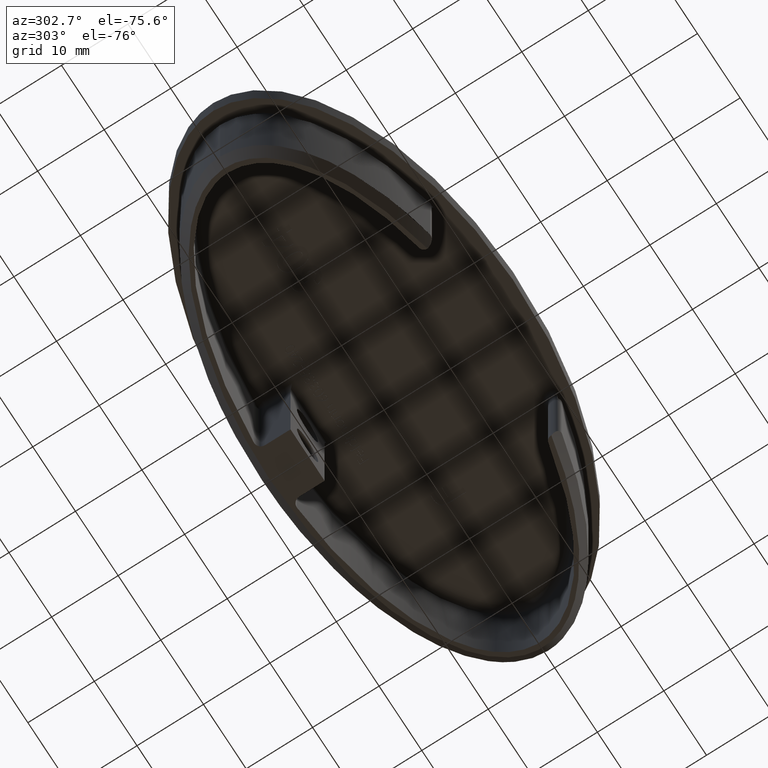
[diagram: clean part render]
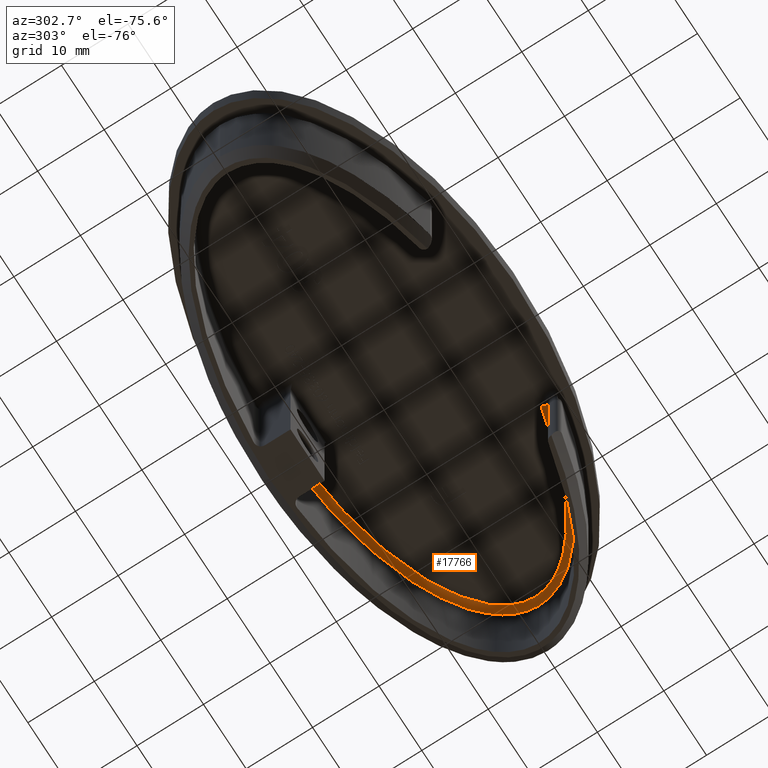
[diagram: same view with one face highlighted and labeled with its STEP entity id]
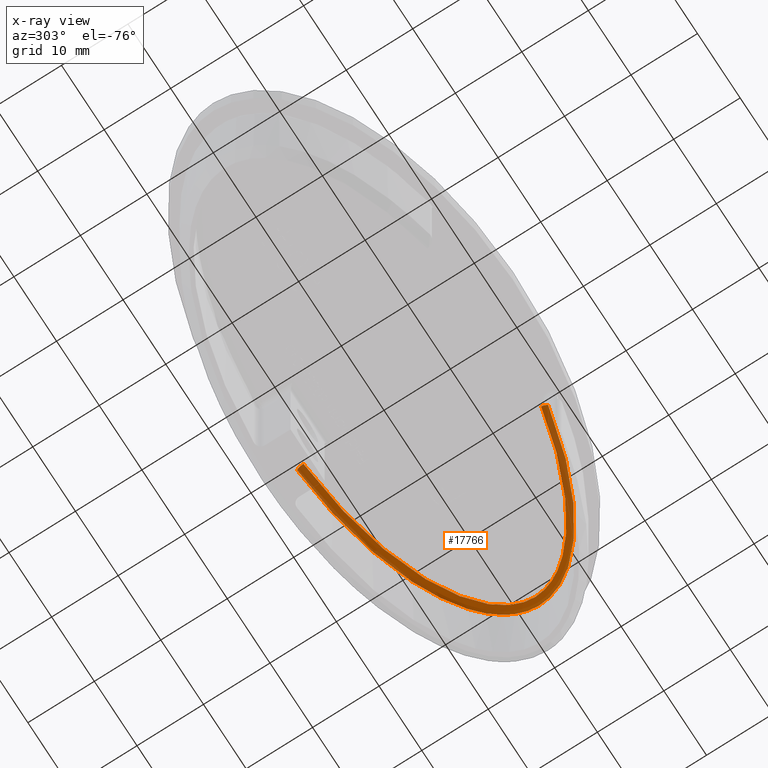
[diagram: x-ray of the same camera — body ghosted, the highlighted face saturated]
A machine part, auxiliary view. The second image highlights one B-rep face of the part: STEP entity #17766.
The next image is the same camera in x-ray: the body ghosted, the highlighted face saturated — about 22% of this face is hidden behind the body in this view.
In plain terms, the highlighted face is a freeform B-spline surface patch.
Its self-contained STEP definition (entity closure, byte-faithful):
#174 = CARTESIAN_POINT ( 'NONE',  ( 21.26345678321402133, -12.37803949894938071, -1.301042606982605321E-15 ) ) ;
#314 = CARTESIAN_POINT ( 'NONE',  ( 35.65981218259821617, -3.536970266699435594, -1.301042606982605124E-15 ) ) ;
#382 = CARTESIAN_POINT ( 'NONE',  ( 30.63025942403847779, -7.753909038157328126, -1.301042606982605321E-15 ) ) ;
#445 = CARTESIAN_POINT ( 'NONE',  ( 35.48936549256551842, -3.869829986172986569, -1.000000000000000888 ) ) ;
#514 = CARTESIAN_POINT ( 'NONE',  ( 36.49350335621724639, 0.4923672548055889053, -1.301042606982605124E-15 ) ) ;
#583 = CARTESIAN_POINT ( 'NONE',  ( 34.75967675400372769, -3.099469151605923845, -1.301042606982605321E-15 ) ) ;
#650 = CARTESIAN_POINT ( 'NONE',  ( 21.98285558272306162, 13.17687429683214972, -1.000000000000000888 ) ) ;
#718 = CARTESIAN_POINT ( 'NONE',  ( 30.51084527226928245, 9.110495190089366702, -1.000000000000000888 ) ) ;
#762 = VERTEX_POINT ( 'NONE', #5364 ) ;
#789 = CARTESIAN_POINT ( 'NONE',  ( 21.34734157472739824, 13.38830686032881445, -1.000000000000000888 ) ) ;
#861 = CARTESIAN_POINT ( 'NONE',  ( 18.15953167746627273, 14.38126225173440709, 2.270783941636172456E-12 ) ) ;
#946 = CARTESIAN_POINT ( 'NONE',  ( 36.48582009450503705, 0.5726934544396672377, -1.000000000000001110 ) ) ;
#1012 = CARTESIAN_POINT ( 'NONE',  ( 27.39790074990626678, -10.90967121701940457, -1.000000000000001110 ) ) ;
#1075 = CARTESIAN_POINT ( 'NONE',  ( 34.13185268707185571, 5.853533565209358969, -1.000000000000001332 ) ) ;
#1140 = CARTESIAN_POINT ( 'NONE',  ( 35.20687651812144736, -4.364188350813879680, -1.000000000000001554 ) ) ;
#1380 = CARTESIAN_POINT ( 'NONE',  ( 10.22533923872077644, 14.84231570294997304, -1.301042606982605321E-15 ) ) ;
#1389 = CARTESIAN_POINT ( 'NONE',  ( 27.61177292880960010, 10.82620345642081539, -1.000000000000001110 ) ) ;
#1437 = CARTESIAN_POINT ( 'NONE',  ( 21.68399147720304398, 12.22216197717541952, -1.301042606982605912E-15 ) ) ;
#1454 = CARTESIAN_POINT ( 'NONE',  ( 26.38295077736240302, 11.42918468486901951, -1.000000000000001332 ) ) ;
#1462 = EDGE_CURVE ( 'NONE', #4835, #762, #16914, .T. ) ;
#1481 = CARTESIAN_POINT ( 'NONE',  ( 6.388284915116066998, 16.25657258451904852, -4.975843535193706102E-12 ) ) ;
#1584 = CARTESIAN_POINT ( 'NONE',  ( 34.68203208628676748, 3.255077491390505173, -1.301042606982605518E-15 ) ) ;
#1601 = CARTESIAN_POINT ( 'NONE',  ( 24.92351165717066053, -10.99257563079131828, -1.301042606982605321E-15 ) ) ;
#1647 = CARTESIAN_POINT ( 'NONE',  ( 21.25949067511998081, -12.37932296166706614, -1.301042606982605518E-15 ) ) ;
#1662 = CARTESIAN_POINT ( 'NONE',  ( 28.96120657976782553, -10.08360900007344796, -1.301042606982605124E-15 ) ) ;
#1732 = CARTESIAN_POINT ( 'NONE',  ( 31.22777016797315852, -8.556492082286091261, -1.000000000000000888 ) ) ;
#1873 = CARTESIAN_POINT ( 'NONE',  ( 36.50201149322371208, -0.07982301956054729808, -1.000000000000000888 ) ) ;
#1918 = CARTESIAN_POINT ( 'NONE',  ( 16.22412580920772029, -13.76920730391419134, -4.718528363748727840E-30 ) ) ;
#1936 = CARTESIAN_POINT ( 'NONE',  ( 33.81579854951861819, -6.234719848615451809, -1.951563910473907981E-15 ) ) ;
#2001 = CARTESIAN_POINT ( 'NONE',  ( 36.45857842177336750, 0.8707688684612469032, -1.301042606982605124E-15 ) ) ;
#2068 = CARTESIAN_POINT ( 'NONE',  ( 34.09231580704933862, -4.249957293760858512, -1.301042606982605321E-15 ) ) ;
#2128 = CARTESIAN_POINT ( 'NONE',  ( 36.10634255804797021, -2.514648161701620310, -1.301042606982605124E-15 ) ) ;
#2192 = CARTESIAN_POINT ( 'NONE',  ( 31.51553632376358749, 7.053874551710665131, -1.301042606982605321E-15 ) ) ;
#2264 = CARTESIAN_POINT ( 'NONE',  ( 34.80406742013403942, 4.980490916081431685, -1.301042606982605124E-15 ) ) ;
#2330 = CARTESIAN_POINT ( 'NONE',  ( 21.98285558277877172, 13.17687429699204493, 3.564975090553881668E-13 ) ) ;
#2402 = CARTESIAN_POINT ( 'NONE',  ( 34.17296033673882505, 4.129270008641589662, -1.301042606982605321E-15 ) ) ;
#2482 = CARTESIAN_POINT ( 'NONE',  ( 33.20771230277453867, 6.870024619271552169, -1.000000000000001332 ) ) ;
#2549 = CARTESIAN_POINT ( 'NONE',  ( 36.46370404180522939, -0.8115805624672641772, -1.000000000000001332 ) ) ;
#2745 = CARTESIAN_POINT ( 'NONE',  ( 36.40222404245460552, 1.254246828357186594, -1.000000000000001110 ) ) ;
#2804 = CARTESIAN_POINT ( 'NONE',  ( 22.56210734373176052, 12.99060195446742050, -1.000000000000001332 ) ) ;
#2805 = CARTESIAN_POINT ( 'NONE',  ( 4.999999999999992895, 15.34247628065456226, -1.000000000000001332 ) ) ;
#2871 = VERTEX_POINT ( 'NONE', #6275 ) ;
#2921 = CARTESIAN_POINT ( 'NONE',  ( 15.38133620756274489, 13.99384702659470037, -1.301042606982605124E-15 ) ) ;
#2982 = CARTESIAN_POINT ( 'NONE',  ( 35.28054480602367704, 1.712554046856639145, -1.301042606982605518E-15 ) ) ;
#3056 = CIRCLE ( 'NONE', #9480, 1.000000000000000222 ) ;
#3099 = CARTESIAN_POINT ( 'NONE',  ( 35.35903922782912900, 1.387567721439747270, -1.301042606982605518E-15 ) ) ;
#3186 = CARTESIAN_POINT ( 'NONE',  ( 30.67194554130117012, -8.955916069884317210, -1.000000000000000888 ) ) ;
#3252 = CARTESIAN_POINT ( 'NONE',  ( 24.08350921651201304, -12.41970347731210111, -1.000000000000000888 ) ) ;
#3316 = CARTESIAN_POINT ( 'NONE',  ( 20.30803585122079369, -13.72708209298127535, -1.134721634496945193E-12 ) ) ;
#3340 = DIRECTION ( 'NONE',  ( -0.2018106209588799160, 0.9794245623161548231, 0.000000000000000000 ) ) ;
#3385 = CARTESIAN_POINT ( 'NONE',  ( 34.27341134742319895, -3.972722937725603476, -1.301042606982605321E-15 ) ) ;
#3449 = CARTESIAN_POINT ( 'NONE',  ( 35.34542790105617627, -1.558713040404205552, -1.301042606982605321E-15 ) ) ;
#3471 = CARTESIAN_POINT ( 'NONE',  ( 14.93674088227401242, -14.03447321771075806, -1.000000000000000000 ) ) ;
#3509 = CARTESIAN_POINT ( 'NONE',  ( 35.56341312309822911, 3.729572152941359242, -1.000000000000000888 ) ) ;
#3572 = CARTESIAN_POINT ( 'NONE',  ( 32.14423837253605143, -6.502482204379113284, -1.301042606982605321E-15 ) ) ;
#3647 = CARTESIAN_POINT ( 'NONE',  ( 35.01017297614893664, 4.677211483779848855, -1.000000000000000888 ) ) ;
#3716 = CARTESIAN_POINT ( 'NONE',  ( 23.24944064167065960, 12.72487679989903064, -1.000000000000000888 ) ) ;
#3783 = CARTESIAN_POINT ( 'NONE',  ( 26.53774569154395380, 10.24697701311105469, -1.301042606982605321E-15 ) ) ;
#3854 = CARTESIAN_POINT ( 'NONE',  ( 7.618420921276204183, 15.14343929999975913, -1.301042606982605321E-15 ) ) ;
#3921 = CARTESIAN_POINT ( 'NONE',  ( 34.15608176740394697, 5.849548827326583655, -1.301042606982605124E-15 ) ) ;
#3993 = CARTESIAN_POINT ( 'NONE',  ( 32.52449512010636568, -7.504760917822943078, -1.000000000000001110 ) ) ;
#4123 = CARTESIAN_POINT ( 'NONE',  ( 21.73751689087374928, -13.27563920825335053, -1.000000000000001332 ) ) ;
#4182 = CARTESIAN_POINT ( 'NONE',  ( 33.74624141004759537, -6.293203593818191166, -1.000000000000001332 ) ) ;
#4238 = CARTESIAN_POINT ( 'NONE',  ( 5.000000000000000000, 15.34247628065456226, 0.000000000000000000 ) ) ;
#4298 = CARTESIAN_POINT ( 'NONE',  ( 5.063193593044852392, 16.34047756812772079, -1.000000000000001332 ) ) ;
#4468 = CARTESIAN_POINT ( 'NONE',  ( 34.95881946401048168, 2.656363002672902152, -1.301042606982605124E-15 ) ) ;
#4479 = CARTESIAN_POINT ( 'NONE',  ( 15.94675819806633577, 14.85770620499337547, -1.000000000000001110 ) ) ;
#4549 = CARTESIAN_POINT ( 'NONE',  ( 10.55131555202487448, 15.84984284271810928, -1.000000000000001554 ) ) ;
#4689 = CARTESIAN_POINT ( 'NONE',  ( 15.13855150323289323, -15.01389778002691244, -1.000000000000000888 ) ) ;
#4712 = DIRECTION ( 'NONE',  ( 0.9794245623161549341, 0.2018106209588799715, -0.000000000000000000 ) ) ;
#4736 = CARTESIAN_POINT ( 'NONE',  ( 14.93674088227401242, -14.03447321771075806, 0.000000000000000000 ) ) ;
#4760 = CARTESIAN_POINT ( 'NONE',  ( 16.44696568053878494, -14.74429878511394776, -1.000000000000000888 ) ) ;
#4823 = CARTESIAN_POINT ( 'NONE',  ( 34.28892556830538041, -5.689073677446335964, -1.301042606982605124E-15 ) ) ;
#4835 = VERTEX_POINT ( 'NONE', #13065 ) ;
#4891 = CARTESIAN_POINT ( 'NONE',  ( 36.49754000459249426, -0.2713099805717995583, -1.000000000000000888 ) ) ;
#4953 = CARTESIAN_POINT ( 'NONE',  ( 36.24234380327397531, 1.990750464926849039, -1.301042606982605124E-15 ) ) ;
#5023 = CARTESIAN_POINT ( 'NONE',  ( 36.45857842228580381, 0.8707688685470439394, -1.000000000000000888 ) ) ;
#5082 = CARTESIAN_POINT ( 'NONE',  ( 35.49437413273113862, 0.4263713847623804010, -1.301042606982605321E-15 ) ) ;
#5156 = CARTESIAN_POINT ( 'NONE',  ( 25.75717038492712163, 11.71567007437397478, -1.000000000000000888 ) ) ;
#5219 = CARTESIAN_POINT ( 'NONE',  ( 21.34734157469030080, 13.38830686020971150, -5.693222886677754097E-13 ) ) ;
#5285 = CARTESIAN_POINT ( 'NONE',  ( 22.89978701469024358, 11.78788728370534677, -1.301042606982605321E-15 ) ) ;
#5353 = CARTESIAN_POINT ( 'NONE',  ( 33.68444688847695545, 6.377751608718475573, 2.127722496375495368E-13 ) ) ;
#5364 = CARTESIAN_POINT ( 'NONE',  ( 5.063193593044852392, 16.34047756812772079, -1.000000000000001332 ) ) ;
#5419 = CARTESIAN_POINT ( 'NONE',  ( 17.91137160567403797, 13.41117177278233008, -1.301042606982605321E-15 ) ) ;
#5558 = CARTESIAN_POINT ( 'NONE',  ( 29.78902681713085343, -9.545779801959744404, -1.000000000000001332 ) ) ;
#5746 = CARTESIAN_POINT ( 'NONE',  ( 14.93674088227401064, -14.03447321771075806, -1.301042606982605321E-15 ) ) ;
#5874 = CARTESIAN_POINT ( 'NONE',  ( 29.94939340892505086, 8.239588489241539193, -1.301042606982605518E-15 ) ) ;
#5935 = CARTESIAN_POINT ( 'NONE',  ( 7.622618855988552156, 15.14304571387305742, -1.301042606982605518E-15 ) ) ;
#6001 = CARTESIAN_POINT ( 'NONE',  ( 35.15232466707980308, -2.203565091193417036, -1.301042606982605321E-15 ) ) ;
#6035 = ORIENTED_EDGE ( 'NONE', *, *, #14742, .F. ) ;
#6121 = CARTESIAN_POINT ( 'NONE',  ( 17.92688847584695822, 13.40751963045385153, -1.301042606982605321E-15 ) ) ;
#6137 = CARTESIAN_POINT ( 'NONE',  ( 27.75676179364277374, -10.74482727317073305, -9.957190647320763890E-13 ) ) ;
#6275 = CARTESIAN_POINT ( 'NONE',  ( 14.93674088227401242, -14.03447321771075806, 0.000000000000000000 ) ) ;
#6336 = CARTESIAN_POINT ( 'NONE',  ( 36.45414414809246750, -0.8483598868671311521, -1.301042606982605124E-15 ) ) ;
#6407 = CARTESIAN_POINT ( 'NONE',  ( 36.24234380492978147, 1.990750465454291351, -1.000000000000000888 ) ) ;
#6466 = ORIENTED_EDGE ( 'NONE', *, *, #1462, .F. ) ;
#6471 = CARTESIAN_POINT ( 'NONE',  ( 35.46026168835792447, -0.7351055012475576911, -1.301042606982605321E-15 ) ) ;
#6532 = CARTESIAN_POINT ( 'NONE',  ( 36.32199508734758098, -1.796155507937118312, -1.000000000000000888 ) ) ;
#6543 = FACE_OUTER_BOUND ( 'NONE', #18459, .T. ) ;
#6593 = CARTESIAN_POINT ( 'NONE',  ( 36.33339663688445853, 1.618750979214554686, -1.000000000000000888 ) ) ;
#6663 = CARTESIAN_POINT ( 'NONE',  ( 25.75717038479421817, 11.71567007405621474, 8.563362085233749455E-13 ) ) ;
#6732 = CARTESIAN_POINT ( 'NONE',  ( 15.57705991268568724, 14.97521234356037745, -1.000000000000000888 ) ) ;
#6798 = CARTESIAN_POINT ( 'NONE',  ( 34.80406742104884898, 4.980490916763531395, -1.000000000000000888 ) ) ;
#6850 = CIRCLE ( 'NONE', #15902, 1.000000000000000222 ) ;
#6859 = CARTESIAN_POINT ( 'NONE',  ( 11.66312661596286304, 15.64768887152057708, -2.405766284831314642E-12 ) ) ;
#6919 = CARTESIAN_POINT ( 'NONE',  ( 34.51667047969942104, 3.562837921786682571, -1.301042606982605321E-15 ) ) ;
#6999 = CARTESIAN_POINT ( 'NONE',  ( 36.10883213206641074, -2.494373021585447603, -1.000000000000001110 ) ) ;
#7059 = CARTESIAN_POINT ( 'NONE',  ( 34.76718474666605374, 5.032627065776225095, -1.000000000000001332 ) ) ;
#7122 = CARTESIAN_POINT ( 'NONE',  ( 36.30469027430676476, -1.837308386220061207, -1.000000000000001554 ) ) ;
#7249 = CARTESIAN_POINT ( 'NONE',  ( 24.29259508245304389, -12.33727958221693477, -1.000000000000001332 ) ) ;
#7354 = CARTESIAN_POINT ( 'NONE',  ( 35.07974928223651290, 2.348458941681684120, -1.301042606982605321E-15 ) ) ;
#7417 = CARTESIAN_POINT ( 'NONE',  ( 28.28303989761142745, 9.288931394227894600, -1.301042606982605321E-15 ) ) ;
#7475 = CARTESIAN_POINT ( 'NONE',  ( 33.40274836724248786, 5.188925909317213758, -1.301042606982605715E-15 ) ) ;
#7551 = CARTESIAN_POINT ( 'NONE',  ( 7.811747577358897132, 16.16643871254032661, -1.000000000000001998 ) ) ;
#7727 = CARTESIAN_POINT ( 'NONE',  ( 32.13527644082677881, -6.510730332315223023, -1.301042606982604926E-15 ) ) ;
#7746 = CARTESIAN_POINT ( 'NONE',  ( 17.74303177656778274, -14.43530123388950415, 1.132119549282976146E-12 ) ) ;
#7794 = CARTESIAN_POINT ( 'NONE',  ( 24.91736434352034024, -10.99520072898910961, -1.301042606982605124E-15 ) ) ;
#7818 = CARTESIAN_POINT ( 'NONE',  ( 35.46417545490827905, 0.7542238789466434445, -1.301042606982605321E-15 ) ) ;
#7877 = CARTESIAN_POINT ( 'NONE',  ( 36.01238833916037407, 2.712655008387785838, -1.301042606982605124E-15 ) ) ;
#7943 = CARTESIAN_POINT ( 'NONE',  ( 34.60681774724604054, -3.398291372714228764, -1.301042606982605321E-15 ) ) ;
#8021 = CARTESIAN_POINT ( 'NONE',  ( 34.28892556674760783, -5.689073676325721252, -1.000000000000000888 ) ) ;
#8092 = CARTESIAN_POINT ( 'NONE',  ( 36.33339663739689485, 1.618750979300351167, -1.301042606982605124E-15 ) ) ;
#8154 = CARTESIAN_POINT ( 'NONE',  ( 23.24944064161493884, 12.72487679973913544, -3.569311899243772189E-13 ) ) ;
#8216 = CARTESIAN_POINT ( 'NONE',  ( 15.57705991265550338, 14.97521234339787277, 4.807629441841714587E-12 ) ) ;
#8284 = CARTESIAN_POINT ( 'NONE',  ( 11.66312661594777111, 15.64768887143932652, -1.000000000000000888 ) ) ;
#8357 = CARTESIAN_POINT ( 'NONE',  ( 26.98014997573422846, 11.14486977138079382, -1.301042606982605124E-15 ) ) ;
#8424 = CARTESIAN_POINT ( 'NONE',  ( 28.83626710121268388, 8.986094359955204780, -1.301042606982605321E-15 ) ) ;
#8496 = CARTESIAN_POINT ( 'NONE',  ( 28.00900768450572542, -10.58883062747300130, -1.000000000000001332 ) ) ;
#8629 = CARTESIAN_POINT ( 'NONE',  ( 33.03027102472690757, -7.042486414281206919, -1.000000000000001110 ) ) ;
#8698 = CARTESIAN_POINT ( 'NONE',  ( 34.41940713242369299, -5.498601881428127669, -1.000000000000001332 ) ) ;
#8754 = CARTESIAN_POINT ( 'NONE',  ( 21.57701336690316651, -13.32804823606663369, -1.301042606982605124E-15 ) ) ;
#8798 = CARTESIAN_POINT ( 'NONE',  ( 21.05989548793523625, 12.43015192604734587, -1.301042606982605321E-15 ) ) ;
#8807 = CARTESIAN_POINT ( 'NONE',  ( 29.38687936850611493, 9.796022883596865682, -1.000000000000001332 ) ) ;
#8808 = DIRECTION ( 'NONE',  ( 0.06319359304485931694, 0.9980012874731579720, -1.734723475976806700E-15 ) ) ;
#8917 = CARTESIAN_POINT ( 'NONE',  ( 35.50355312941728414, -0.2512728194424050376, -1.301042606982605321E-15 ) ) ;
#8951 = CARTESIAN_POINT ( 'NONE',  ( 5.063193593044852392, 16.34047756812772079, -1.301042606982605124E-15 ) ) ;
#8980 = CARTESIAN_POINT ( 'NONE',  ( 34.26573175431854423, -3.984906463575478952, -1.301042606982604926E-15 ) ) ;
#9049 = CARTESIAN_POINT ( 'NONE',  ( 23.54431420789328300, 11.54184402439089574, -1.301042606982605321E-15 ) ) ;
#9065 = CARTESIAN_POINT ( 'NONE',  ( 23.71563954144319197, -11.48937760189580359, -1.301042606982605321E-15 ) ) ;
#9195 = CARTESIAN_POINT ( 'NONE',  ( 30.67194554102453452, -8.955916069464651130, -1.301042606982605124E-15 ) ) ;
#9265 = CARTESIAN_POINT ( 'NONE',  ( 20.01899711677316063, -12.76947023965609596, -1.301042606982605321E-15 ) ) ;
#9329 = CARTESIAN_POINT ( 'NONE',  ( 33.81579855058418360, -6.234719849669323466, -1.000000000000000888 ) ) ;
#9394 = CARTESIAN_POINT ( 'NONE',  ( 35.15741556496025311, -2.188854330921533364, -1.301042606982605321E-15 ) ) ;
#9457 = CARTESIAN_POINT ( 'NONE',  ( 35.87494735105045152, 3.059692700991359260, -1.000000000000000888 ) ) ;
#9480 = AXIS2_PLACEMENT_3D ( 'NONE', #2805, #19366, #8808 ) ;
#9529 = CARTESIAN_POINT ( 'NONE',  ( 35.12061735150709296, -4.505152437200748317, 3.470407951361302610E-14 ) ) ;
#9599 = CARTESIAN_POINT ( 'NONE',  ( 36.47366950340741454, -0.6554114895734104440, -1.301042606982605124E-15 ) ) ;
#9662 = CARTESIAN_POINT ( 'NONE',  ( 35.38929400905234246, 4.052422481084197337, -1.301042606982605124E-15 ) ) ;
#9733 = CARTESIAN_POINT ( 'NONE',  ( 21.03764144066156661, 12.43738519578182533, -1.301042606982605321E-15 ) ) ;
#9804 = CARTESIAN_POINT ( 'NONE',  ( 7.715538138078124497, 16.13886983581115331, -1.000000000000000888 ) ) ;
#9864 = CARTESIAN_POINT ( 'NONE',  ( 23.88191482871775051, 12.48371732782683630, -1.000000000000000888 ) ) ;
#9934 = CARTESIAN_POINT ( 'NONE',  ( 30.51084527309265226, 9.110495191148057614, 1.438115213001867399E-12 ) ) ;
#9957 = CARTESIAN_POINT ( 'NONE',  ( 15.13855150323289323, -15.01389778002691244, -1.000000000000000888 ) ) ;
#10080 = CARTESIAN_POINT ( 'NONE',  ( 33.97843164088143197, -6.033099299433943408, -1.000000000000001332 ) ) ;
#10203 = CARTESIAN_POINT ( 'NONE',  ( 36.50446101324172332, 0.2296554964135146815, -1.000000000000001332 ) ) ;
#10321 = CARTESIAN_POINT ( 'NONE',  ( 31.65387893757583981, 8.230978165580326689, -1.000000000000001554 ) ) ;
#10367 = CARTESIAN_POINT ( 'NONE',  ( 32.96538613496898051, 5.681083614395413761, -1.301042606982605715E-15 ) ) ;
#10438 = CARTESIAN_POINT ( 'NONE',  ( 34.75304895790321780, -3.113062336260697727, -1.301042606982605124E-15 ) ) ;
#10504 = CARTESIAN_POINT ( 'NONE',  ( 28.84682194448313197, 8.954544760494528077, -1.301042606982605321E-15 ) ) ;
#10519 = CARTESIAN_POINT ( 'NONE',  ( 16.44696568056802732, -14.74429878529736548, -8.564773348546408375E-13 ) ) ;
#10570 = CARTESIAN_POINT ( 'NONE',  ( 22.92652740202607475, 11.77792587111403577, -1.301042606982604926E-15 ) ) ;
#10588 = CARTESIAN_POINT ( 'NONE',  ( 25.32113168359854427, -11.91090900637284200, 9.961527456010707928E-13 ) ) ;
#10631 = CARTESIAN_POINT ( 'NONE',  ( 23.71020068063047859, -11.49150187558048053, -1.301042606982605518E-15 ) ) ;
#10651 = CARTESIAN_POINT ( 'NONE',  ( 27.29073844258751080, -9.859242658230101597, -1.301042606982605321E-15 ) ) ;
#10729 = CARTESIAN_POINT ( 'NONE',  ( 30.09885528691413725, -8.135972040794523963, -1.301042606982605321E-15 ) ) ;
#10769 = CARTESIAN_POINT ( 'NONE',  ( 28.44824992330138969, -9.223368201835501878, -1.301042606982605321E-15 ) ) ;
#10789 = CARTESIAN_POINT ( 'NONE',  ( 16.22493679868706096, -13.76904019955213343, -1.301042606982605321E-15 ) ) ;
#10850 = CARTESIAN_POINT ( 'NONE',  ( 36.10634255976907525, -2.514648162453223534, -1.000000000000000888 ) ) ;
#10901 = CARTESIAN_POINT ( 'NONE',  ( 17.49814135742676768, -13.46543791400717538, -1.301042606982605321E-15 ) ) ;
#10924 = CARTESIAN_POINT ( 'NONE',  ( 32.82373229518012892, -7.237521230313464393, -1.951563910473907981E-15 ) ) ;
#10989 = CARTESIAN_POINT ( 'NONE',  ( 35.87494734985515521, 3.059692700435333812, 3.426019660251567099E-14 ) ) ;
#11051 = CARTESIAN_POINT ( 'NONE',  ( 32.82373229411456350, -7.237521229259593625, -1.000000000000000888 ) ) ;
#11117 = CARTESIAN_POINT ( 'NONE',  ( 33.07348908870566362, -5.563176086801372655, -1.301042606982605321E-15 ) ) ;
#11192 = CARTESIAN_POINT ( 'NONE',  ( 32.95109192770325990, 5.696522838348265338, -1.301042606982605321E-15 ) ) ;
#11262 = CARTESIAN_POINT ( 'NONE',  ( 32.15855788575473895, 7.820465153631245059, -1.000000000000000888 ) ) ;
#11329 = CARTESIAN_POINT ( 'NONE',  ( 10.35167252607744537, 15.83446405791861089, -1.000000000000000888 ) ) ;
#11411 = CARTESIAN_POINT ( 'NONE',  ( 6.388284915112206974, 16.25657258443174413, -1.000000000000000888 ) ) ;
#11439 = EDGE_CURVE ( 'NONE', #14960, #2871, #14224, .T. ) ;
#11497 = CARTESIAN_POINT ( 'NONE',  ( 35.34312631065629517, 4.165218799929891524, -1.000000000000001332 ) ) ;
#11555 = CARTESIAN_POINT ( 'NONE',  ( 31.47007461483784141, -8.373209551281881602, -1.000000000000001332 ) ) ;
#11737 = CARTESIAN_POINT ( 'NONE',  ( 34.62881371863232971, -5.223680620168257072, -1.000000000000001110 ) ) ;
#11832 = CARTESIAN_POINT ( 'NONE',  ( 26.56104015844696775, 10.23544758496507079, -1.301042606982605518E-15 ) ) ;
#11844 = CARTESIAN_POINT ( 'NONE',  ( 19.93935196102569662, 13.83962493073069133, -1.000000000000001332 ) ) ;
#11955 = CARTESIAN_POINT ( 'NONE',  ( 30.48910549716958229, 7.858454757231509547, -1.301042606982605518E-15 ) ) ;
#12014 = CARTESIAN_POINT ( 'NONE',  ( 33.99645763040165036, 4.389658518661335940, -1.301042606982605124E-15 ) ) ;
#12085 = CARTESIAN_POINT ( 'NONE',  ( 32.03048634021340746, 6.606481812304480172, -1.301042606982605518E-15 ) ) ;
#12100 = CARTESIAN_POINT ( 'NONE',  ( 27.75676179390003284, -10.74482727371397850, -1.000000000000000888 ) ) ;
#12144 = CARTESIAN_POINT ( 'NONE',  ( 33.06462473797139268, -5.572931723676476601, -1.301042606982605124E-15 ) ) ;
#12160 = CARTESIAN_POINT ( 'NONE',  ( 28.45628324695599787, -9.218730380430129046, -1.301042606982605321E-15 ) ) ;
#12218 = CARTESIAN_POINT ( 'NONE',  ( 31.22777016849376963, -8.556492082937863231, -4.979552035236093589E-13 ) ) ;
#12272 = CARTESIAN_POINT ( 'NONE',  ( 31.64396148262366992, -6.944686350085152782, -1.301042606982605124E-15 ) ) ;
#12357 = CARTESIAN_POINT ( 'NONE',  ( 35.35523377079213247, 1.405168671204740205, -1.301042606982605321E-15 ) ) ;
#12417 = CARTESIAN_POINT ( 'NONE',  ( 35.48936549140591978, -3.869829985499940950, -3.730616472757874792E-14 ) ) ;
#12480 = CARTESIAN_POINT ( 'NONE',  ( 34.95159469086656401, 2.673724092150629339, -1.301042606982605321E-15 ) ) ;
#12552 = CARTESIAN_POINT ( 'NONE',  ( 36.32199509005018712, -1.796155508313936444, -1.301042606982605124E-15 ) ) ;
#12617 = CARTESIAN_POINT ( 'NONE',  ( 36.49350335575667970, 0.4923672547987383852, -1.000000000000000888 ) ) ;
#12684 = CARTESIAN_POINT ( 'NONE',  ( 21.66030375494722193, 12.23021314833348328, -1.301042606982605321E-15 ) ) ;
#12754 = CARTESIAN_POINT ( 'NONE',  ( 33.68444688931395348, 6.377751609566750801, -1.000000000000000888 ) ) ;
#12825 = CARTESIAN_POINT ( 'NONE',  ( 7.715538138082726149, 16.13886983584874102, 9.922400189991231640E-13 ) ) ;
#12889 = CARTESIAN_POINT ( 'NONE',  ( 34.15608176557432074, 5.849548825962385123, -1.000000000000000888 ) ) ;
#12976 = CARTESIAN_POINT ( 'NONE',  ( 30.92129779895572028, -8.779210656947789460, -1.000000000000000888 ) ) ;
#13042 = CARTESIAN_POINT ( 'NONE',  ( 36.05221524359702556, 2.597136473240593713, -1.000000000000001110 ) ) ;
#13065 = CARTESIAN_POINT ( 'NONE',  ( 15.13855150323289323, -15.01389778002691244, -1.000000000000000888 ) ) ;
#13119 =( BOUNDED_SURFACE ( )  B_SPLINE_SURFACE ( 3, 2, ( 
 ( #4689, #16681, #5746 ),
 ( #4760, #10519, #10789 ),
 ( #17750, #7746, #16555 ),
 ( #15190, #3316, #9265 ),
 ( #16232, #8754, #174 ),
 ( #3252, #19479, #9065 ),
 ( #15120, #10588, #1601 ),
 ( #12100, #6137, #10651 ),
 ( #18195, #1662, #12160 ),
 ( #3186, #9195, #10729 ),
 ( #1732, #12218, #382 ),
 ( #16944, #18328, #17097 ),
 ( #11051, #10924, #3572 ),
 ( #9329, #1936, #11117 ),
 ( #8021, #4823, #17019 ),
 ( #13868, #18519, #2068 ),
 ( #13804, #9529, #3385 ),
 ( #445, #12417, #7943 ),
 ( #14072, #314, #583 ),
 ( #10850, #2128, #9394 ),
 ( #6532, #12552, #3449 ),
 ( #15453, #6336, #6471 ),
 ( #13935, #9599, #18586 ),
 ( #4891, #15322, #15390 ),
 ( #1873, #16819, #15583 ),
 ( #12617, #514, #5082 ),
 ( #5023, #2001, #7818 ),
 ( #6593, #8092, #12357 ),
 ( #6407, #4953, #16878 ),
 ( #18460, #7877, #18396 ),
 ( #9457, #10989, #12480 ),
 ( #3509, #14008, #15514 ),
 ( #17366, #9662, #6919 ),
 ( #3647, #17430, #2402 ),
 ( #6798, #2264, #14344 ),
 ( #12889, #3921, #14137 ),
 ( #12754, #5353, #11192 ),
 ( #18652, #15925, #14207 ),
 ( #11262, #14412, #2192 ),
 ( #718, #9934, #18865 ),
 ( #15646, #15856, #8424 ),
 ( #14279, #8357, #3783 ),
 ( #5156, #6663, #15714 ),
 ( #9864, #17165, #17232 ),
 ( #3716, #8154, #5285 ),
 ( #650, #2330, #12684 ),
 ( #789, #5219, #9733 ),
 ( #18728, #861, #5419 ),
 ( #6732, #8216, #15785 ),
 ( #8284, #6859, #17303 ),
 ( #11329, #18794, #18927 ),
 ( #9804, #12825, #3854 ),
 ( #11411, #1481, #14764 ),
 ( #16260, #8951, #17719 ) ),
 .UNSPECIFIED., .F., .F., .F. ) 
 B_SPLINE_SURFACE_WITH_KNOTS ( ( 4, 2, 2, 2, 2, 2, 2, 2, 2, 2, 2, 2, 2, 2, 2, 2, 2, 2, 2, 2, 2, 2, 2, 2, 2, 2, 4 ),
 ( 3, 3 ),
 ( 0.1024749600732555305, 0.1063504850441077954, 0.1102260100149600741, 0.1141015349858123529, 0.1179770599566646316, 0.1199148224420907710, 0.1218525849275169104, 0.1237903474129430498, 0.1247592286556561125, 0.1257281098983691892, 0.1276658723837953147, 0.1281503130051518391, 0.1286347536265083913, 0.1296036348692214402, 0.1305725161119345168, 0.1315413973546475934, 0.1325102785973606423, 0.1334791598400737189, 0.1354169223254998444, 0.1373546848109259977, 0.1412302097817782487, 0.1451057347526305275, 0.1470434972380566530, 0.1489812597234828062, 0.1567323096651873637, 0.1606078346360396147, 0.1644833596068918935 ),
 ( 0.000000000000000000, 1.000000000000000000 ),
 .UNSPECIFIED. ) 
 GEOMETRIC_REPRESENTATION_ITEM ( )  RATIONAL_B_SPLINE_SURFACE ( (
 ( 1.000000000000000000, 0.7071067811865475727, 1.000000000000000000),
 ( 1.000000000000000000, 0.7071067811865475727, 1.000000000000000000),
 ( 1.000000000000000000, 0.7071067811865476838, 1.000000000000000000),
 ( 1.000000000000000000, 0.7071067811865476838, 1.000000000000000000),
 ( 1.000000000000000000, 0.7071067811865476838, 1.000000000000000000),
 ( 1.000000000000000000, 0.7071067811865476838, 1.000000000000000000),
 ( 1.000000000000000000, 0.7071067811865471286, 1.000000000000000000),
 ( 1.000000000000000000, 0.7071067811865471286, 1.000000000000000000),
 ( 1.000000000000000000, 0.7071067811865476838, 1.000000000000000000),
 ( 1.000000000000000000, 0.7071067811865476838, 1.000000000000000000),
 ( 1.000000000000000000, 0.7071067811865476838, 1.000000000000000000),
 ( 1.000000000000000000, 0.7071067811865476838, 1.000000000000000000),
 ( 1.000000000000000000, 0.7071067811865477948, 1.000000000000000000),
 ( 1.000000000000000000, 0.7071067811865477948, 1.000000000000000000),
 ( 1.000000000000000000, 0.7071067811865476838, 1.000000000000000000),
 ( 1.000000000000000000, 0.7071067811865476838, 1.000000000000000000),
 ( 1.000000000000000000, 0.7071067811865476838, 1.000000000000000000),
 ( 1.000000000000000000, 0.7071067811865476838, 1.000000000000000000),
 ( 1.000000000000000000, 0.7071067811865476838, 1.000000000000000000),
 ( 1.000000000000000000, 0.7071067811865476838, 1.000000000000000000),
 ( 1.000000000000000000, 0.7071067811865476838, 1.000000000000000000),
 ( 1.000000000000000000, 0.7071067811865476838, 1.000000000000000000),
 ( 1.000000000000000000, 0.7071067811865476838, 1.000000000000000000),
 ( 1.000000000000000000, 0.7071067811865476838, 1.000000000000000000),
 ( 1.000000000000000000, 0.7071067811865476838, 1.000000000000000000),
 ( 1.000000000000000000, 0.7071067811865476838, 1.000000000000000000),
 ( 1.000000000000000000, 0.7071067811865476838, 1.000000000000000000),
 ( 1.000000000000000000, 0.7071067811865476838, 1.000000000000000000),
 ( 1.000000000000000000, 0.7071067811865476838, 1.000000000000000000),
 ( 1.000000000000000000, 0.7071067811865476838, 1.000000000000000000),
 ( 1.000000000000000000, 0.7071067811865477948, 1.000000000000000000),
 ( 1.000000000000000000, 0.7071067811865477948, 1.000000000000000000),
 ( 1.000000000000000000, 0.7071067811865476838, 1.000000000000000000),
 ( 1.000000000000000000, 0.7071067811865476838, 1.000000000000000000),
 ( 1.000000000000000000, 0.7071067811865476838, 1.000000000000000000),
 ( 1.000000000000000000, 0.7071067811865476838, 1.000000000000000000),
 ( 1.000000000000000000, 0.7071067811865476838, 1.000000000000000000),
 ( 1.000000000000000000, 0.7071067811865476838, 1.000000000000000000),
 ( 1.000000000000000000, 0.7071067811865476838, 1.000000000000000000),
 ( 1.000000000000000000, 0.7071067811865476838, 1.000000000000000000),
 ( 1.000000000000000000, 0.7071067811865476838, 1.000000000000000000),
 ( 1.000000000000000000, 0.7071067811865476838, 1.000000000000000000),
 ( 1.000000000000000000, 0.7071067811865476838, 1.000000000000000000),
 ( 1.000000000000000000, 0.7071067811865476838, 1.000000000000000000),
 ( 1.000000000000000000, 0.7071067811865472397, 1.000000000000000000),
 ( 1.000000000000000000, 0.7071067811865472397, 1.000000000000000000),
 ( 1.000000000000000000, 0.7071067811865476838, 1.000000000000000000),
 ( 1.000000000000000000, 0.7071067811865476838, 1.000000000000000000),
 ( 1.000000000000000000, 0.7071067811865476838, 1.000000000000000000),
 ( 1.000000000000000000, 0.7071067811865476838, 1.000000000000000000),
 ( 1.000000000000000000, 0.7071067811865476838, 1.000000000000000000),
 ( 1.000000000000000000, 0.7071067811865476838, 1.000000000000000000),
 ( 1.000000000000000000, 0.7071067811865476838, 1.000000000000000000),
 ( 1.000000000000000000, 0.7071067811865476838, 1.000000000000000000) ) ) 
 REPRESENTATION_ITEM ( '' )  SURFACE ( )  );
#13157 = CARTESIAN_POINT ( 'NONE',  ( 29.20547571465771952, -9.906273330977322544, -1.000000000000001776 ) ) ;
#13217 = CARTESIAN_POINT ( 'NONE',  ( 36.33726609759935400, 1.592761969704016289, -1.000000000000001110 ) ) ;
#13532 = CARTESIAN_POINT ( 'NONE',  ( 11.51986740110916507, 14.65781961531764388, -1.301042606982605715E-15 ) ) ;
#13804 = CARTESIAN_POINT ( 'NONE',  ( 35.12061735034748722, -4.505152436527701809, -1.000000000000000888 ) ) ;
#13868 = CARTESIAN_POINT ( 'NONE',  ( 34.92168194877793042, -4.809474042922398773, -1.000000000000000888 ) ) ;
#13935 = CARTESIAN_POINT ( 'NONE',  ( 36.47366950360977000, -0.6554114895859818324, -1.000000000000000888 ) ) ;
#14008 = CARTESIAN_POINT ( 'NONE',  ( 35.56341312429351831, 3.729572153497385134, -3.729596268547406104E-14 ) ) ;
#14072 = CARTESIAN_POINT ( 'NONE',  ( 35.65981218173765654, -3.536970266323633538, -1.000000000000000888 ) ) ;
#14137 = CARTESIAN_POINT ( 'NONE',  ( 33.38946652393933334, 5.204767639699757531, -1.301042606982605321E-15 ) ) ;
#14207 = CARTESIAN_POINT ( 'NONE',  ( 32.01426176978009863, 6.621208415201745190, -1.301042606982605321E-15 ) ) ;
#14224 = B_SPLINE_CURVE_WITH_KNOTS ( 'NONE', 3,
 ( #19353, #18041, #5935, #1380, #13532, #2921, #6121, #8798, #1437, #10570, #9049, #19293, #11832, #7417, #10504, #5874, #11955, #14854, #12085, #10367, #7475, #12014, #16350, #17985, #1584, #4468, #7354, #2982, #3099, #17921, #16607, #8917, #17862, #19408, #6001, #10438, #16470, #8980, #19464, #18304, #12144, #7727, #12272, #16796, #15168, #10769, #16729, #7794, #10631, #1647, #15298, #10901, #1918, #4736 ),
 .UNSPECIFIED., .F., .F.,
 ( 4, 2, 2, 2, 2, 2, 2, 2, 2, 2, 2, 2, 2, 2, 2, 2, 2, 2, 2, 2, 2, 2, 2, 2, 2, 2, 4 ),
 ( 0.000000000000000000, 0.003947811218790834263, 0.007895622437581668526, 0.01579124487516333011, 0.01776515048455875115, 0.01973905609395417218, 0.02368686731274500731, 0.02566077292214042835, 0.02763467853153584938, 0.02960858414093128430, 0.03158248975032672268, 0.03256944255502443319, 0.03355639535972215065, 0.03454334816441986811, 0.03553030096911758556, 0.03651725377381529608, 0.03750420657851301354, 0.03947811218790844845, 0.04046506499260615897, 0.04145201779730387642, 0.04342592340669931134, 0.04539982901609473931, 0.04737373462549016728, 0.05132154584428102323, 0.05526935706307187918, 0.05921716828186273512, 0.06316497950065358413 ),
 .UNSPECIFIED. ) ;
#14279 = CARTESIAN_POINT ( 'NONE',  ( 26.98014997538389181, 11.14486977074214380, -1.000000000000000888 ) ) ;
#14344 = CARTESIAN_POINT ( 'NONE',  ( 33.98485072732999868, 4.406257133163481221, -1.301042606982605321E-15 ) ) ;
#14412 = CARTESIAN_POINT ( 'NONE',  ( 32.15855788534305049, 7.820465153101897826, -7.210091704114180079E-13 ) ) ;
#14622 = CARTESIAN_POINT ( 'NONE',  ( 35.02254199759666875, -4.656469413912200928, -1.000000000000001776 ) ) ;
#14685 = CARTESIAN_POINT ( 'NONE',  ( 17.81289503485401937, -14.41856121159089987, -1.000000000000001332 ) ) ;
#14742 = EDGE_CURVE ( 'NONE', #2871, #4835, #6850, .T. ) ;
#14764 = CARTESIAN_POINT ( 'NONE',  ( 6.308294569511097016, 15.25963486997267005, -1.301042606982605321E-15 ) ) ;
#14854 = CARTESIAN_POINT ( 'NONE',  ( 31.53267667952341924, 7.039455895830750265, -1.301042606982605321E-15 ) ) ;
#14960 = VERTEX_POINT ( 'NONE', #4238 ) ;
#15057 = CARTESIAN_POINT ( 'NONE',  ( 23.85846131772457923, 12.51180329887303522, -1.000000000000001110 ) ) ;
#15120 = CARTESIAN_POINT ( 'NONE',  ( 25.32113168334128162, -11.91090900582960010, -1.000000000000000888 ) ) ;
#15168 = CARTESIAN_POINT ( 'NONE',  ( 30.09027061477199183, -8.141955964696732551, -1.301042606982605518E-15 ) ) ;
#15190 = CARTESIAN_POINT ( 'NONE',  ( 20.30803585126557920, -13.72708209314346561, -1.000000000000000888 ) ) ;
#15298 = CARTESIAN_POINT ( 'NONE',  ( 20.01579600493069222, -12.77041572147663473, -1.301042606982605518E-15 ) ) ;
#15322 = CARTESIAN_POINT ( 'NONE',  ( 36.49754000479486393, -0.2713099805843709467, -1.301042606982605124E-15 ) ) ;
#15360 = ORIENTED_EDGE ( 'NONE', *, *, #16410, .T. ) ;
#15390 = CARTESIAN_POINT ( 'NONE',  ( 35.49787271962845381, -0.2349130256754237700, -1.301042606982605321E-15 ) ) ;
#15453 = CARTESIAN_POINT ( 'NONE',  ( 36.45414414876812259, -0.8483598869613356852, -1.000000000000000888 ) ) ;
#15514 = CARTESIAN_POINT ( 'NONE',  ( 34.67328462729455651, 3.272162971655976804, -1.301042606982605321E-15 ) ) ;
#15583 = CARTESIAN_POINT ( 'NONE',  ( 35.50174190198040236, -0.06912674912255198367, -1.301042606982605321E-15 ) ) ;
#15646 = CARTESIAN_POINT ( 'NONE',  ( 29.35576449036379287, 9.841696732484741972, -1.000000000000000888 ) ) ;
#15714 = CARTESIAN_POINT ( 'NONE',  ( 25.34801006294838999, 10.80262614657433495, -1.301042606982605321E-15 ) ) ;
#15785 = CARTESIAN_POINT ( 'NONE',  ( 15.36984877959724649, 13.99616151950978704, -1.301042606982605321E-15 ) ) ;
#15856 = CARTESIAN_POINT ( 'NONE',  ( 29.35576449001345267, 9.841696731846093726, -1.301042606982605124E-15 ) ) ;
#15902 = AXIS2_PLACEMENT_3D ( 'NONE', #3471, #4712, #3340 ) ;
#15925 = CARTESIAN_POINT ( 'NONE',  ( 32.68586410088977345, 7.363389286496127895, -2.153743348515178524E-13 ) ) ;
#16064 = CARTESIAN_POINT ( 'NONE',  ( 35.66991168794799449, 3.559043801316283062, -1.000000000000001332 ) ) ;
#16127 = CARTESIAN_POINT ( 'NONE',  ( 35.70210098956608391, -3.446339178980866613, -1.000000000000001554 ) ) ;
#16176 = CARTESIAN_POINT ( 'NONE',  ( 25.55048996175500520, -11.81160037715896394, -1.000000000000001332 ) ) ;
#16232 = CARTESIAN_POINT ( 'NONE',  ( 21.57701336679953386, -13.32804823578069175, -1.000000000000000888 ) ) ;
#16236 = CARTESIAN_POINT ( 'NONE',  ( 20.44016876738744415, -13.68784561016811097, -1.000000000000001332 ) ) ;
#16260 = CARTESIAN_POINT ( 'NONE',  ( 5.063193593044852392, 16.34047756812772079, -1.000000000000000888 ) ) ;
#16350 = CARTESIAN_POINT ( 'NONE',  ( 34.18387491983166626, 4.112540729062437173, -1.301042606982605518E-15 ) ) ;
#16410 = EDGE_CURVE ( 'NONE', #14960, #762, #3056, .T. ) ;
#16470 = CARTESIAN_POINT ( 'NONE',  ( 34.59977351145627722, -3.411430519219245117, -1.301042606982605518E-15 ) ) ;
#16549 = CARTESIAN_POINT ( 'NONE',  ( 31.09927149979353445, 8.650120780891347394, -1.000000000000001332 ) ) ;
#16555 = CARTESIAN_POINT ( 'NONE',  ( 17.49977124095559233, -13.46504963585362091, -1.301042606982605321E-15 ) ) ;
#16607 = CARTESIAN_POINT ( 'NONE',  ( 35.49548222467375069, 0.4091403150370874209, -1.301042606982605518E-15 ) ) ;
#16681 = CARTESIAN_POINT ( 'NONE',  ( 15.13855150323289323, -15.01389778002691422, -8.673617379884035472E-16 ) ) ;
#16729 = CARTESIAN_POINT ( 'NONE',  ( 27.28326677585637228, -9.863135954590376286, -1.301042606982605518E-15 ) ) ;
#16796 = CARTESIAN_POINT ( 'NONE',  ( 30.62152684279870130, -7.760388716485119964, -1.301042606982605518E-15 ) ) ;
#16819 = CARTESIAN_POINT ( 'NONE',  ( 36.50201149299341807, -0.07982301956397261367, -1.301042606982605124E-15 ) ) ;
#16878 = CARTESIAN_POINT ( 'NONE',  ( 35.27576515834820725, 1.730407390863953454, -1.301042606982605321E-15 ) ) ;
#16914 = B_SPLINE_CURVE_WITH_KNOTS ( 'NONE', 3,
 ( #9957, #17690, #14685, #16236, #4123, #7249, #16176, #1012, #8496, #13157, #5558, #12976, #11555, #3993, #8629, #4182, #10080, #8698, #11737, #14622, #1140, #18946, #16127, #6999, #7122, #2549, #19063, #10203, #946, #2745, #13217, #17758, #13042, #16064, #11497, #7059, #17630, #1075, #19127, #2482, #17568, #10321, #16549, #19365, #8807, #1389, #1454, #15057, #2804, #11844, #19304, #4479, #17871, #4549, #7551, #4298 ),
 .UNSPECIFIED., .F., .F.,
 ( 4, 2, 2, 2, 2, 2, 2, 2, 2, 2, 2, 2, 2, 2, 2, 2, 2, 2, 2, 2, 2, 2, 2, 2, 2, 2, 2, 4 ),
 ( 0.000000000000000000, 0.004082291855587302440, 0.008164583711174604880, 0.01224687556676190732, 0.01428802149455555767, 0.01632916742234920976, 0.01837031335014285838, 0.02041145927793651046, 0.02143203224183334518, 0.02245260520573017643, 0.02347317816962701115, 0.02449375113352384239, 0.02653489706131750836, 0.02755547002521433614, 0.02857604298911116739, 0.02959661595300799516, 0.03061718891690482641, 0.03265833484469848197, 0.03367890780859530281, 0.03469948077249212365, 0.03674062670028577920, 0.03878177262807942782, 0.04082291855587307644, 0.04490521041146038755, 0.04898750226704769173, 0.05306979412263500978, 0.05715208597822232089, 0.06531666968939693618 ),
 .UNSPECIFIED. ) ;
#16944 = CARTESIAN_POINT ( 'NONE',  ( 32.30358437921799464, -7.697169262852869842, -1.000000000000000888 ) ) ;
#17019 = CARTESIAN_POINT ( 'NONE',  ( 33.51232593268156990, -5.056205792865942961, -1.301042606982605321E-15 ) ) ;
#17097 = CARTESIAN_POINT ( 'NONE',  ( 31.65288208411602611, -6.937073770244501780, -1.301042606982605321E-15 ) ) ;
#17165 = CARTESIAN_POINT ( 'NONE',  ( 23.88191482878419691, 12.48371732798571720, -4.301196681721583010E-13 ) ) ;
#17232 = CARTESIAN_POINT ( 'NONE',  ( 23.51797682638324005, 11.55215172317384820, -1.301042606982605321E-15 ) ) ;
#17303 = CARTESIAN_POINT ( 'NONE',  ( 11.51273001837716592, 14.65887639900620343, -1.301042606982605321E-15 ) ) ;
#17366 = CARTESIAN_POINT ( 'NONE',  ( 35.38929400987684915, 4.052422481584507352, -1.000000000000000888 ) ) ;
#17430 = CARTESIAN_POINT ( 'NONE',  ( 35.01017297697344333, 4.677211484280160647, -1.301042606982605124E-15 ) ) ;
#17500 = ORIENTED_EDGE ( 'NONE', *, *, #11439, .F. ) ;
#17568 = CARTESIAN_POINT ( 'NONE',  ( 32.70753498467660592, 7.341035944549228809, -1.000000000000001332 ) ) ;
#17630 = CARTESIAN_POINT ( 'NONE',  ( 34.56142467163705589, 5.313534270670395188, -1.000000000000001110 ) ) ;
#17690 = CARTESIAN_POINT ( 'NONE',  ( 16.48290771479688033, -14.73689292198652367, -1.000000000000001332 ) ) ;
#17719 = CARTESIAN_POINT ( 'NONE',  ( 4.999999999999992895, 15.34247628065456226, -1.301042606982605321E-15 ) ) ;
#17750 = CARTESIAN_POINT ( 'NONE',  ( 17.74303177652299723, -14.43530123372731211, -1.000000000000000888 ) ) ;
#17758 = CARTESIAN_POINT ( 'NONE',  ( 36.16210964088267588, 2.265374550999622372, -1.000000000000001554 ) ) ;
#17766 = ADVANCED_FACE ( 'NONE', ( #6543 ), #13119, .F. ) ;
#17862 = CARTESIAN_POINT ( 'NONE',  ( 35.48169370446903059, -0.5872547549177021819, -1.301042606982605518E-15 ) ) ;
#17871 = CARTESIAN_POINT ( 'NONE',  ( 14.60400308993147434, 15.13590672642718715, -1.000000000000001332 ) ) ;
#17921 = CARTESIAN_POINT ( 'NONE',  ( 35.46617279381279531, 0.7368685475700530452, -1.301042606982605321E-15 ) ) ;
#17985 = CARTESIAN_POINT ( 'NONE',  ( 34.52615226901823320, 3.545877026165927592, -1.301042606982604926E-15 ) ) ;
#18041 = CARTESIAN_POINT ( 'NONE',  ( 6.313318961486126035, 15.25931672461793731, 6.419766481290736548E-32 ) ) ;
#18195 = CARTESIAN_POINT ( 'NONE',  ( 28.96120657921455077, -10.08360899923411402, -1.000000000000000888 ) ) ;
#18304 = CARTESIAN_POINT ( 'NONE',  ( 33.50371929813002936, -5.066716422843078327, -1.301042606982605124E-15 ) ) ;
#18328 = CARTESIAN_POINT ( 'NONE',  ( 32.30358437869737998, -7.697169262201098761, 4.953531183096440472E-13 ) ) ;
#18396 = CARTESIAN_POINT ( 'NONE',  ( 35.07331273618982692, 2.365970992878275059, -1.301042606982605321E-15 ) ) ;
#18459 = EDGE_LOOP ( 'NONE', ( #15360, #6466, #6035, #17500 ) ) ;
#18460 = CARTESIAN_POINT ( 'NONE',  ( 36.01238833750456791, 2.712655007860343304, -1.000000000000000888 ) ) ;
#18519 = CARTESIAN_POINT ( 'NONE',  ( 34.92168194799904768, -4.809474042362091417, -1.301042606982605124E-15 ) ) ;
#18586 = CARTESIAN_POINT ( 'NONE',  ( 35.47718780413948281, -0.5677551013520448775, -1.301042606982605321E-15 ) ) ;
#18652 = CARTESIAN_POINT ( 'NONE',  ( 32.68586410005278253, 7.363389285647854443, -1.000000000000000888 ) ) ;
#18728 = CARTESIAN_POINT ( 'NONE',  ( 18.15953167731787943, 14.38126225125799351, -1.000000000000000888 ) ) ;
#18794 = CARTESIAN_POINT ( 'NONE',  ( 10.35167252607284283, 15.83446405788102496, -9.948421042130811045E-13 ) ) ;
#18865 = CARTESIAN_POINT ( 'NONE',  ( 29.94750505082328473, 8.281520336077342392, -1.301042606982605321E-15 ) ) ;
#18927 = CARTESIAN_POINT ( 'NONE',  ( 10.21936568023001790, 14.84309701987466568, -1.301042606982605321E-15 ) ) ;
#18946 = CARTESIAN_POINT ( 'NONE',  ( 35.54658465016011348, -3.759573802617650617, -1.000000000000001776 ) ) ;
#19063 = CARTESIAN_POINT ( 'NONE',  ( 36.49374345834415578, -0.4611075178962714682, -1.000000000000001110 ) ) ;
#19127 = CARTESIAN_POINT ( 'NONE',  ( 33.90720221825615965, 6.113894702612893362, -1.000000000000001110 ) ) ;
#19293 = CARTESIAN_POINT ( 'NONE',  ( 25.37252699126227284, 10.79159519566136005, -1.301042606982605715E-15 ) ) ;
#19304 = CARTESIAN_POINT ( 'NONE',  ( 18.61372945996960837, 14.20970776313908956, -1.000000000000001332 ) ) ;
#19353 = CARTESIAN_POINT ( 'NONE',  ( 5.000000000000000000, 15.34247628065456226, 0.000000000000000000 ) ) ;
#19365 = CARTESIAN_POINT ( 'NONE',  ( 29.96712078137366930, 9.431481814675132469, -1.000000000000001554 ) ) ;
#19366 = DIRECTION ( 'NONE',  ( -0.9980012874731578609, 0.06319359304485931694, 6.925025049739051658E-15 ) ) ;
#19408 = CARTESIAN_POINT ( 'NONE',  ( 35.34156659579292636, -1.574230138467944240, -1.301042606982605124E-15 ) ) ;
#19464 = CARTESIAN_POINT ( 'NONE',  ( 34.08437388943720237, -4.261701398689648812, -1.301042606982605715E-15 ) ) ;
#19479 = CARTESIAN_POINT ( 'NONE',  ( 24.08350921640838394, -12.41970347702615740, -1.301042606982605124E-15 ) ) ;